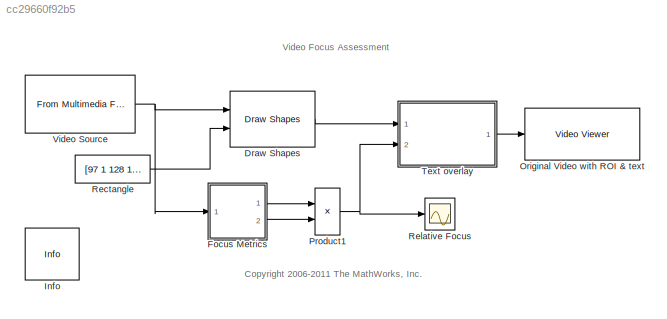
MODEL slx_cc29660f92b5
KIND model
CONFIG AbsTol = auto
CONFIG FixedStep = auto
CONFIG MaxStep = auto
CONFIG MinStep = auto
CONFIG RelTol = 1e-3
CONFIG SampleTimeConstraint = Unconstrained
CONFIG Solver = FixedStepDiscrete
CONFIG SolverMode = Auto
CONFIG SolverName = FixedStepDiscrete
CONFIG StartTime = 0.0
CONFIG StopTime = inf
BLOCK [Reference] Draw Shapes  REF=visiontextngfix/Draw Shapes
  Ports = [2, 1]
  SourceBlock = visiontextngfix/Draw Shapes
  SourceType = Draw Shapes
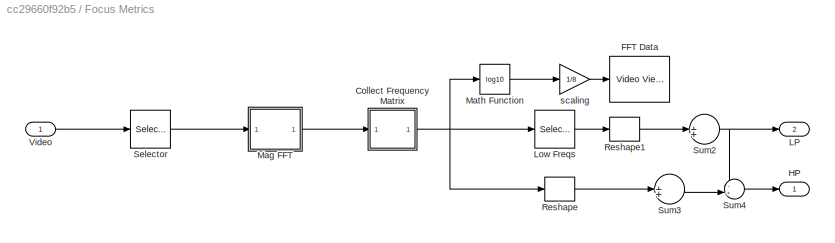
BLOCK [SubSystem] Focus Metrics
  Ports = [1, 2]
  RequestExecContextInheritance = off
  Variant = off
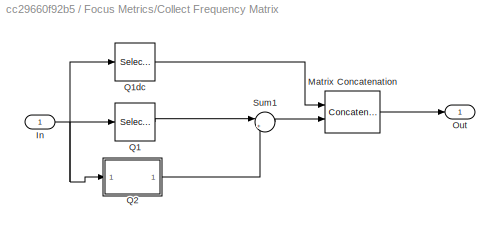
BLOCK [SubSystem] Focus Metrics/Collect Frequency Matrix
  Ports = [1, 1]
  RequestExecContextInheritance = off
  Variant = off
BLOCK [Inport] Focus Metrics/Collect Frequency Matrix/In
  IconDisplay = Port number
BLOCK [Concatenate] Focus Metrics/Collect Frequency Matrix/Matrix Concatenation
  ConcatenateDimension = 2
  Mode = Multidimensional array
  Ports = [2, 1]
BLOCK [Outport] Focus Metrics/Collect Frequency Matrix/Out
  IconDisplay = Port number
BLOCK [Selector] Focus Metrics/Collect Frequency Matrix/Q1
  IndexOptions = Index vector (dialog),Index vector (dialog)
  Indices = [1:16],[2:16]
  InputPortWidth = 3
  NumberOfDimensions = 2
  OutputSizes = 1,1
  Ports = [1, 1]
BLOCK [Selector] Focus Metrics/Collect Frequency Matrix/Q1dc
  IndexOptions = Index vector (dialog),Index vector (dialog)
  Indices = [1:16],1
  InputPortWidth = 3
  NumberOfDimensions = 2
  OutputSizes = 1,1
  Ports = [1, 1]
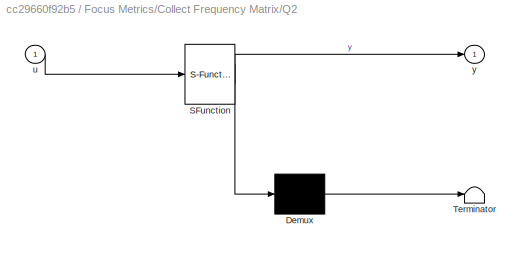
BLOCK [SubSystem] Focus Metrics/Collect Frequency Matrix/Q2
  ErrorFcn = Stateflow.Translate.translate
  PermitHierarchicalResolution = ExplicitOnly
  Ports = [1, 1]
  RequestExecContextInheritance = off
  SFBlockType = MATLAB Function
  TreatAsAtomicUnit = on
  Variant = off
BLOCK [Demux] Focus Metrics/Collect Frequency Matrix/Q2/ Demux 
  Outputs = 1
  Ports = [1, 1]
BLOCK [S-Function] Focus Metrics/Collect Frequency Matrix/Q2/ SFunction 
  EnableBusSupport = on
  FunctionName = sf_sfun
  PortCounts = [1 2]
  Ports = [1, 2]
  SFunctionDeploymentMode = off
  Tag = Stateflow S-Function vipfocus 2
BLOCK [Terminator] Focus Metrics/Collect Frequency Matrix/Q2/ Terminator 
BLOCK [Inport] Focus Metrics/Collect Frequency Matrix/Q2/u
  IconDisplay = Port number
BLOCK [Outport] Focus Metrics/Collect Frequency Matrix/Q2/y
  IconDisplay = Port number
BLOCK [Sum] Focus Metrics/Collect Frequency Matrix/Sum1
  IconShape = round
  Inputs = |++
  Ports = [2, 1]
BLOCK [Reference] Focus Metrics/FFT Data  REF=visionsinks/Video Viewer
  Ports = [1]
  SourceBlock = visionsinks/Video Viewer
  SourceType = Video Viewer
  UserDataPersistent = on
BLOCK [Outport] Focus Metrics/HP
  IconDisplay = Port number
BLOCK [Outport] Focus Metrics/LP
  IconDisplay = Port number
  Port = 2
BLOCK [Selector] Focus Metrics/Low Freqs
  IndexOptions = Index vector (dialog),Index vector (dialog)
  Indices = [1:5],[1:5]
  InputPortWidth = 3
  NumberOfDimensions = 2
  OutputSizes = 1,1
  Ports = [1, 1]
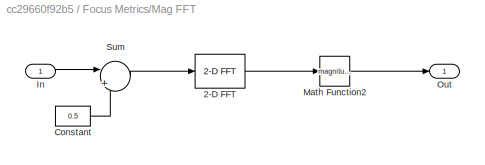
BLOCK [SubSystem] Focus Metrics/Mag FFT
  Ports = [1, 1]
  RequestExecContextInheritance = off
  Variant = off
BLOCK [Reference] Focus Metrics/Mag FFT/2-D FFT  REF=visiontransforms/2-D FFT
  Ports = [1, 1]
  SourceBlock = visiontransforms/2-D FFT
  SourceType = 2-D FFT
BLOCK [Constant] Focus Metrics/Mag FFT/Constant
  OutDataTypeStr = Inherit: Inherit via back propagation
  Value = 0.5
  VectorParams1D = off
BLOCK [Inport] Focus Metrics/Mag FFT/In
  IconDisplay = Port number
BLOCK [Math] Focus Metrics/Mag FFT/Math Function2
  Operator = magnitude^2
  Ports = [1, 1]
BLOCK [Outport] Focus Metrics/Mag FFT/Out
  IconDisplay = Port number
BLOCK [Sum] Focus Metrics/Mag FFT/Sum
  IconShape = round
  Inputs = |+-
  Ports = [2, 1]
BLOCK [Math] Focus Metrics/Math Function
  Operator = log10
  Ports = [1, 1]
BLOCK [Reshape] Focus Metrics/Reshape
  OutputDimensionality = Column vector (2-D)
  Ports = [1, 1]
BLOCK [Reshape] Focus Metrics/Reshape1
  OutputDimensionality = Column vector (2-D)
  Ports = [1, 1]
BLOCK [Selector] Focus Metrics/Selector
  IndexOptions = Index vector (dialog),Index vector (dialog)
  Indices = [1:128],[97:(97+128-1)]
  InputPortWidth = 3
  NumberOfDimensions = 2
  OutputSizes = 1,1
  Ports = [1, 1]
BLOCK [Sum] Focus Metrics/Sum2
  IconShape = round
  Inputs = 1
  Ports = [1, 1]
BLOCK [Sum] Focus Metrics/Sum3
  IconShape = round
  Inputs = 1
  Ports = [1, 1]
BLOCK [Sum] Focus Metrics/Sum4
  IconShape = round
  Inputs = -+|
  Ports = [2, 1]
BLOCK [Inport] Focus Metrics/Video
  IconDisplay = Port number
BLOCK [Gain] Focus Metrics/scaling
  Gain = 1/8
BLOCK [Reference] Info  REF=vipmisc/Info
  Ports = []
  SourceBlock = vipmisc/Info
  SourceType = Info
BLOCK [Reference] Original Video with ROI & text  REF=visionsinks/Video Viewer
  Ports = [1]
  SourceBlock = visionsinks/Video Viewer
  SourceType = Video Viewer
  UserDataPersistent = on
BLOCK [Product] Product1
  Inputs = */
  Ports = [2, 1]
  RndMeth = Floor
BLOCK [Constant] Rectangle
  Value = [97 1 128 128]
  VectorParams1D = off
BLOCK [Scope] Relative Focus
  Ports = [1]
  ScopeSpecificationString = Simulink.scopes.TimeScopeBlockCfg('CurrentConfiguration', extmgr.ConfigurationSet(extmgr.Configuration('Core','General UI',true),extmgr.Configuration('Core','Source UI',true),extmgr.Configuration('Sources','WiredSimulink',true,'DataLoggingSaveFormat','StructureWithTime','DataLoggingDecimation','1'),extmgr.Configuration('Visuals','Time Domain',true,'SerializedDisplays',{struct('MinYLimReal','0.0125...<+1609ch>
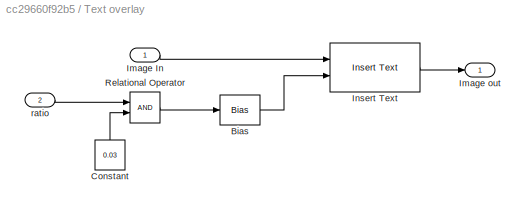
BLOCK [SubSystem] Text overlay
  Ports = [2, 1]
  RequestExecContextInheritance = off
  Variant = off
BLOCK [Bias] Text overlay/Bias
  Bias = 1
  SaturateOnIntegerOverflow = off
BLOCK [Constant] Text overlay/Constant
  OutDataTypeStr = Inherit: Inherit via back propagation
  Value = 0.03
BLOCK [Inport] Text overlay/Image In
  IconDisplay = Port number
BLOCK [Outport] Text overlay/Image out
  IconDisplay = Port number
BLOCK [Reference] Text overlay/Insert Text  REF=visiontextngfix/Insert Text
  Ports = [2, 1]
  SourceBlock = visiontextngfix/Insert Text
  SourceType = Insert Text
BLOCK [RelationalOperator] Text overlay/Relational Operator
  InputSameDT = off
  OutDataTypeStr = fixdt(1,32)
  Ports = [2, 1]
BLOCK [Inport] Text overlay/ratio
  IconDisplay = Port number
  Port = 2
BLOCK [Reference] Video Source  REF=dspvision/From Multimedia File
  Ports = [0, 1]
  SourceBlock = dspvision/From Multimedia File
  SourceType = From Multimedia File
ANNOTATION (root): <copyright redacted>
ANNOTATION (root): Video Focus Assessment
LINE Draw Shapes:1 -> Text overlay:1
NET Focus Metrics/Collect Frequency Matrix/In:1 -> Focus Metrics/Collect Frequency Matrix/Q1:1, Focus Metrics/Collect Frequency Matrix/Q1dc:1, Focus Metrics/Collect Frequency Matrix/Q2:1
LINE Focus Metrics/Collect Frequency Matrix/Matrix Concatenation:1 -> Focus Metrics/Collect Frequency Matrix/Out:1
LINE Focus Metrics/Collect Frequency Matrix/Q1:1 -> Focus Metrics/Collect Frequency Matrix/Sum1:1
LINE Focus Metrics/Collect Frequency Matrix/Q1dc:1 -> Focus Metrics/Collect Frequency Matrix/Matrix Concatenation:1
LINE Focus Metrics/Collect Frequency Matrix/Q2:1 -> Focus Metrics/Collect Frequency Matrix/Sum1:2
LINE Focus Metrics/Collect Frequency Matrix/Sum1:1 -> Focus Metrics/Collect Frequency Matrix/Matrix Concatenation:2
NET Focus Metrics/Collect Frequency Matrix:1 -> Focus Metrics/Low Freqs:1, Focus Metrics/Math Function:1, Focus Metrics/Reshape:1
LINE Focus Metrics/Low Freqs:1 -> Focus Metrics/Reshape1:1
LINE Focus Metrics/Mag FFT/2-D FFT:1 -> Focus Metrics/Mag FFT/Math Function2:1
LINE Focus Metrics/Mag FFT/Constant:1 -> Focus Metrics/Mag FFT/Sum:2
LINE Focus Metrics/Mag FFT/In:1 -> Focus Metrics/Mag FFT/Sum:1
LINE Focus Metrics/Mag FFT/Math Function2:1 -> Focus Metrics/Mag FFT/Out:1
LINE Focus Metrics/Mag FFT/Sum:1 -> Focus Metrics/Mag FFT/2-D FFT:1
LINE Focus Metrics/Mag FFT:1 -> Focus Metrics/Collect Frequency Matrix:1
LINE Focus Metrics/Math Function:1 -> Focus Metrics/scaling:1
LINE Focus Metrics/Reshape1:1 -> Focus Metrics/Sum2:1
LINE Focus Metrics/Reshape:1 -> Focus Metrics/Sum3:1
LINE Focus Metrics/Selector:1 -> Focus Metrics/Mag FFT:1
NET Focus Metrics/Sum2:1 -> Focus Metrics/LP:1, Focus Metrics/Sum4:1
LINE Focus Metrics/Sum3:1 -> Focus Metrics/Sum4:2
LINE Focus Metrics/Sum4:1 -> Focus Metrics/HP:1
LINE Focus Metrics/Video:1 -> Focus Metrics/Selector:1
LINE Focus Metrics/scaling:1 -> Focus Metrics/FFT Data:1
LINE Focus Metrics:1 -> Product1:1
LINE Focus Metrics:2 -> Product1:2
NET Product1:1 -> Relative Focus:1, Text overlay:2
LINE Rectangle:1 -> Draw Shapes:2
LINE Text overlay/Bias:1 -> Text overlay/Insert Text:2
LINE Text overlay/Constant:1 -> Text overlay/Relational Operator:2
LINE Text overlay/Image In:1 -> Text overlay/Insert Text:1
LINE Text overlay/Insert Text:1 -> Text overlay/Image out:1
LINE Text overlay/Relational Operator:1 -> Text overlay/Bias:1
LINE Text overlay/ratio:1 -> Text overlay/Relational Operator:1
LINE Text overlay:1 -> Original Video with ROI & text:1
NET Video Source:1 -> Draw Shapes:1, Focus Metrics:1
note: NET lines group one-source signal fan-out (src -> all destinations, sorted); 1:1 wires keep LINE
CHART Focus
Metrics/Collect
Frequency
Matrix/Q2 states=1 transitions=1
  STATE_LABEL 'eML_blk_kernel()'
  STATE_LABEL 'SCRIPT:\nfunction y = fcn(u)\n%#codegen\n\ns = size(u);\ncolBegin = s(2)-14;\ny = fliplr(u(1:16,colBegin:s(2)));'
